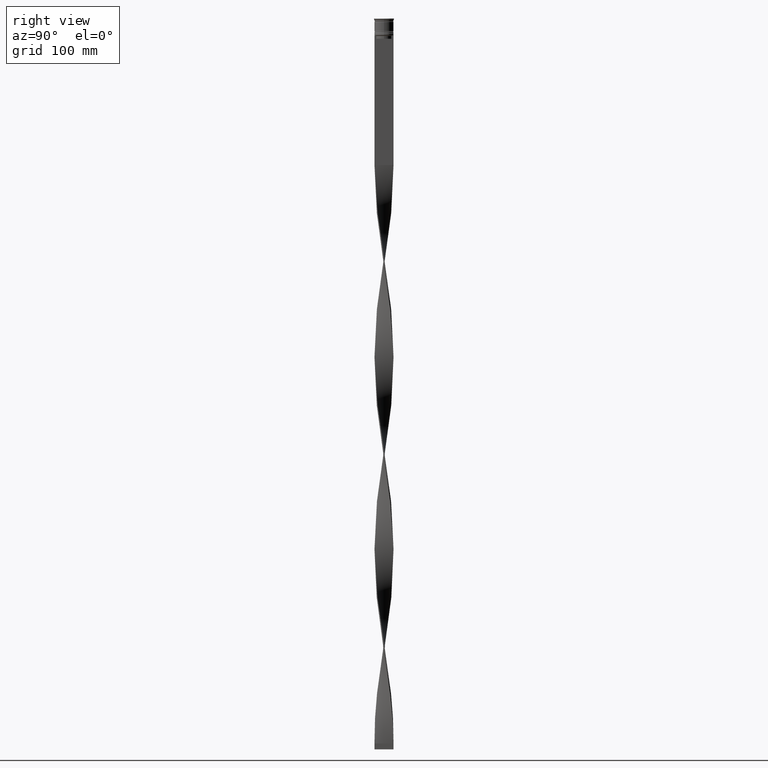
[diagram: clean part render]
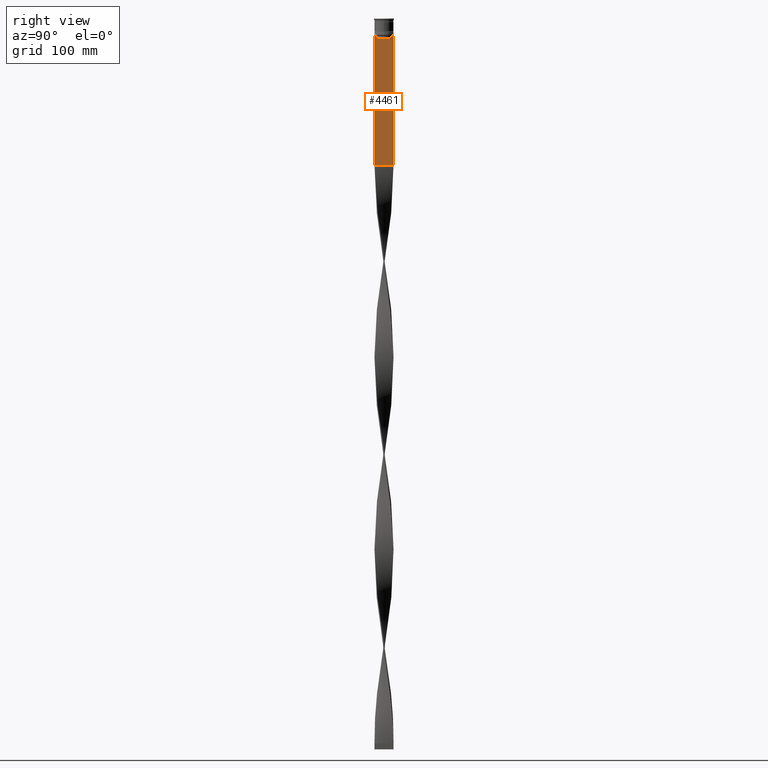
[diagram: same view with one face highlighted and labeled with its STEP entity id]
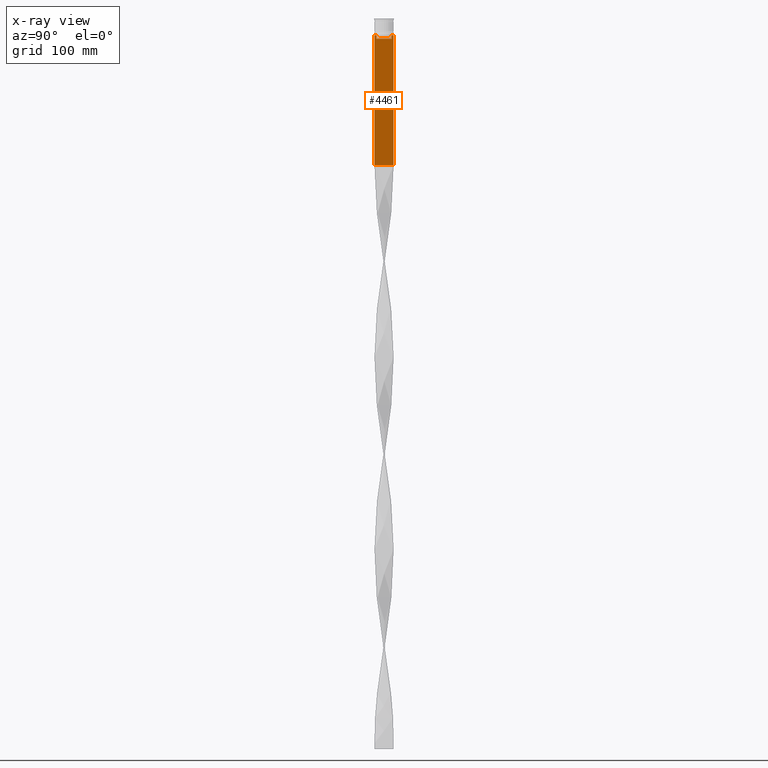
[diagram: x-ray of the same camera — body ghosted, the highlighted face saturated]
A machine part, right view. The second image highlights one B-rep face of the part: STEP entity #4461.
The next image is the same camera in x-ray: the body ghosted, the highlighted face saturated — about 0% of this face is hidden behind the body in this view.
In plain terms, the highlighted planar face has unit normal (-1, 0, 0).
Its self-contained STEP definition (entity closure, byte-faithful):
#40 = LINE ( 'NONE', #2739, #1773 ) ;
#50 = LINE ( 'NONE', #351, #2715 ) ;
#69 = VERTEX_POINT ( 'NONE', #898 ) ;
#103 = ORIENTED_EDGE ( 'NONE', *, *, #3119, .T. ) ;
#106 = CARTESIAN_POINT ( 'NONE',  ( 0.5000000000000001110, -8.000000000000003553, 2.031219541881394530 ) ) ;
#167 = CARTESIAN_POINT ( 'NONE',  ( 0.5000000000000001110, -8.000000000000003553, -123.0000000000000000 ) ) ;
#190 = EDGE_CURVE ( 'NONE', #3093, #2516, #3609, .T. ) ;
#351 = CARTESIAN_POINT ( 'NONE',  ( 0.5000000000000001110, -6.380438856379708312, 0.000000000000000000 ) ) ;
#385 = EDGE_CURVE ( 'NONE', #3523, #619, #1347, .T. ) ;
#390 = DIRECTION ( 'NONE',  ( 0.000000000000000000, 0.000000000000000000, 1.000000000000000000 ) ) ;
#472 = CARTESIAN_POINT ( 'NONE',  ( 0.5000000000000001110, -8.000000000000003553, -14.00000000000000178 ) ) ;
#512 = ORIENTED_EDGE ( 'NONE', *, *, #932, .T. ) ;
#516 = LINE ( 'NONE', #106, #3511 ) ;
#619 = VERTEX_POINT ( 'NONE', #2339 ) ;
#695 = DIRECTION ( 'NONE',  ( 0.000000000000000000, -1.000000000000000000, 0.000000000000000000 ) ) ;
#717 = FACE_OUTER_BOUND ( 'NONE', #1122, .T. ) ;
#757 = EDGE_CURVE ( 'NONE', #4075, #3552, #3878, .T. ) ;
#895 = DIRECTION ( 'NONE',  ( 0.000000000000000000, 0.000000000000000000, -1.000000000000000000 ) ) ;
#898 = CARTESIAN_POINT ( 'NONE',  ( 0.5000000000000001110, 6.881860213634098500, -14.00000000000000178 ) ) ;
#932 = EDGE_CURVE ( 'NONE', #3552, #69, #3577, .T. ) ;
#985 = EDGE_CURVE ( 'NONE', #2511, #3250, #3994, .T. ) ;
#1029 = CARTESIAN_POINT ( 'NONE',  ( 0.5000000000000001110, 6.399999999999999467, -17.00000000000000000 ) ) ;
#1083 = DIRECTION ( 'NONE',  ( 0.000000000000000000, 0.000000000000000000, -1.000000000000000000 ) ) ;
#1106 = CARTESIAN_POINT ( 'NONE',  ( 0.5000000000000001110, 6.380438856379708312, -14.50000000000000000 ) ) ;
#1122 = EDGE_LOOP ( 'NONE', ( #512, #3207, #103, #2948, #4448, #2949, #2257, #2461, #1288, #2670, #2163, #1159 ) ) ;
#1159 = ORIENTED_EDGE ( 'NONE', *, *, #757, .T. ) ;
#1288 = ORIENTED_EDGE ( 'NONE', *, *, #1703, .T. ) ;
#1307 = CARTESIAN_POINT ( 'NONE',  ( 0.5000000000000001110, 6.547597841304911626, -14.33335192459222718 ) ) ;
#1344 = AXIS2_PLACEMENT_3D ( 'NONE', #1393, #2771, #390 ) ;
#1347 = B_SPLINE_CURVE_WITH_KNOTS ( 'NONE', 3,
 ( #3893, #3593, #4274, #3851 ),
 .UNSPECIFIED., .F., .F.,
 ( 4, 4 ),
 ( 0.02996184199614751464, 0.03067452609193705923 ),
 .UNSPECIFIED. ) ;
#1393 = CARTESIAN_POINT ( 'NONE',  ( 0.5000000000000001110, -8.000000000000003553, 2.031219541881394530 ) ) ;
#1429 = DIRECTION ( 'NONE',  ( 0.000000000000000000, -1.000000000000000000, 0.000000000000000000 ) ) ;
#1459 = VERTEX_POINT ( 'NONE', #1106 ) ;
#1660 = VECTOR ( 'NONE', #4377, 1000.000000000000000 ) ;
#1665 = VECTOR ( 'NONE', #1429, 1000.000000000000000 ) ;
#1703 = EDGE_CURVE ( 'NONE', #3250, #3093, #516, .T. ) ;
#1773 = VECTOR ( 'NONE', #3121, 1000.000000000000000 ) ;
#1847 = CARTESIAN_POINT ( 'NONE',  ( 0.5000000000000001110, 7.884161337770806632, -14.00000000000000178 ) ) ;
#1905 = CARTESIAN_POINT ( 'NONE',  ( 0.5000000000000001110, -8.000000000000003553, -14.00000000000000178 ) ) ;
#1978 = EDGE_CURVE ( 'NONE', #4075, #2516, #2218, .T. ) ;
#2026 = CARTESIAN_POINT ( 'NONE',  ( 0.5000000000000001110, 6.380438856379708312, -17.00000000000000000 ) ) ;
#2037 = CARTESIAN_POINT ( 'NONE',  ( 0.5000000000000001110, -8.000000000000003553, -14.00000000000000178 ) ) ;
#2055 = VECTOR ( 'NONE', #1083, 1000.000000000000000 ) ;
#2142 = CARTESIAN_POINT ( 'NONE',  ( 0.5000000000000001110, -6.380438856379708312, -17.00000000000000000 ) ) ;
#2143 = EDGE_CURVE ( 'NONE', #619, #2511, #40, .T. ) ;
#2156 = VECTOR ( 'NONE', #2945, 1000.000000000000000 ) ;
#2163 = ORIENTED_EDGE ( 'NONE', *, *, #1978, .F. ) ;
#2218 = LINE ( 'NONE', #4001, #2355 ) ;
#2257 = ORIENTED_EDGE ( 'NONE', *, *, #2143, .T. ) ;
#2267 = DIRECTION ( 'NONE',  ( 0.000000000000000000, -1.000000000000000000, 0.000000000000000000 ) ) ;
#2301 = B_SPLINE_CURVE_WITH_KNOTS ( 'NONE', 3,
 ( #3067, #4446, #1307, #2690 ),
 .UNSPECIFIED., .F., .F.,
 ( 4, 4 ),
 ( 0.01172465562756038263, 0.01243276816391822651 ),
 .UNSPECIFIED. ) ;
#2310 = VECTOR ( 'NONE', #2267, 1000.000000000000000 ) ;
#2339 = CARTESIAN_POINT ( 'NONE',  ( 0.5000000000000001110, -6.881860213634098500, -14.00000000000000178 ) ) ;
#2355 = VECTOR ( 'NONE', #895, 1000.000000000000000 ) ;
#2436 = DIRECTION ( 'NONE',  ( -0.000000000000000000, -0.000000000000000000, 1.000000000000000000 ) ) ;
#2461 = ORIENTED_EDGE ( 'NONE', *, *, #985, .T. ) ;
#2511 = VERTEX_POINT ( 'NONE', #3934 ) ;
#2516 = VERTEX_POINT ( 'NONE', #2909 ) ;
#2526 = CARTESIAN_POINT ( 'NONE',  ( 0.5000000000000001110, -6.380438856379708312, -14.50000000000000000 ) ) ;
#2670 = ORIENTED_EDGE ( 'NONE', *, *, #190, .T. ) ;
#2690 = CARTESIAN_POINT ( 'NONE',  ( 0.5000000000000001110, 6.380438856379708312, -14.50000000000000000 ) ) ;
#2715 = VECTOR ( 'NONE', #2436, 1000.000000000000000 ) ;
#2739 = CARTESIAN_POINT ( 'NONE',  ( 0.5000000000000001110, -8.000000000000003553, -14.00000000000000178 ) ) ;
#2771 = DIRECTION ( 'NONE',  ( -1.000000000000000000, 0.000000000000000000, 0.000000000000000000 ) ) ;
#2909 = CARTESIAN_POINT ( 'NONE',  ( 0.5000000000000001110, 7.999999999999996447, -123.0000000000000000 ) ) ;
#2913 = EDGE_CURVE ( 'NONE', #69, #1459, #2301, .T. ) ;
#2945 = DIRECTION ( 'NONE',  ( 0.000000000000000000, -1.000000000000000000, 0.000000000000000000 ) ) ;
#2948 = ORIENTED_EDGE ( 'NONE', *, *, #2975, .T. ) ;
#2949 = ORIENTED_EDGE ( 'NONE', *, *, #385, .T. ) ;
#2975 = EDGE_CURVE ( 'NONE', #4047, #3417, #4138, .T. ) ;
#3067 = CARTESIAN_POINT ( 'NONE',  ( 0.5000000000000001110, 6.881860213634098500, -14.00000000000000178 ) ) ;
#3093 = VERTEX_POINT ( 'NONE', #3829 ) ;
#3113 = PLANE ( 'NONE',  #1344 ) ;
#3119 = EDGE_CURVE ( 'NONE', #1459, #4047, #3505, .T. ) ;
#3121 = DIRECTION ( 'NONE',  ( 0.000000000000000000, -1.000000000000000000, 0.000000000000000000 ) ) ;
#3207 = ORIENTED_EDGE ( 'NONE', *, *, #2913, .T. ) ;
#3250 = VERTEX_POINT ( 'NONE', #2037 ) ;
#3417 = VERTEX_POINT ( 'NONE', #2142 ) ;
#3505 = LINE ( 'NONE', #4428, #2055 ) ;
#3511 = VECTOR ( 'NONE', #3594, 1000.000000000000000 ) ;
#3523 = VERTEX_POINT ( 'NONE', #2526 ) ;
#3533 = CARTESIAN_POINT ( 'NONE',  ( 0.5000000000000001110, -8.000000000000003553, -14.00000000000000178 ) ) ;
#3552 = VERTEX_POINT ( 'NONE', #1847 ) ;
#3577 = LINE ( 'NONE', #1905, #2310 ) ;
#3593 = CARTESIAN_POINT ( 'NONE',  ( 0.5000000000000001110, -6.547597841511247019, -14.33335192438652150 ) ) ;
#3594 = DIRECTION ( 'NONE',  ( 0.000000000000000000, 0.000000000000000000, -1.000000000000000000 ) ) ;
#3609 = LINE ( 'NONE', #167, #1660 ) ;
#3646 = VECTOR ( 'NONE', #695, 1000.000000000000000 ) ;
#3829 = CARTESIAN_POINT ( 'NONE',  ( 0.5000000000000001110, -8.000000000000003553, -123.0000000000000000 ) ) ;
#3851 = CARTESIAN_POINT ( 'NONE',  ( 0.5000000000000001110, -6.881860213634098500, -14.00000000000000178 ) ) ;
#3878 = LINE ( 'NONE', #3533, #1665 ) ;
#3893 = CARTESIAN_POINT ( 'NONE',  ( 0.5000000000000001110, -6.380438856379708312, -14.50000000000000000 ) ) ;
#3934 = CARTESIAN_POINT ( 'NONE',  ( 0.5000000000000001110, -7.884161337770806632, -14.00000000000000178 ) ) ;
#3994 = LINE ( 'NONE', #472, #2156 ) ;
#4001 = CARTESIAN_POINT ( 'NONE',  ( 0.5000000000000001110, 7.999999999999996447, 2.031219541881394530 ) ) ;
#4047 = VERTEX_POINT ( 'NONE', #2026 ) ;
#4075 = VERTEX_POINT ( 'NONE', #4087 ) ;
#4087 = CARTESIAN_POINT ( 'NONE',  ( 0.5000000000000001110, 7.999999999999996447, -14.00000000000000178 ) ) ;
#4138 = LINE ( 'NONE', #1029, #3646 ) ;
#4274 = CARTESIAN_POINT ( 'NONE',  ( 0.5000000000000001110, -6.714736947305993908, -14.16668390685738821 ) ) ;
#4330 = EDGE_CURVE ( 'NONE', #3417, #3523, #50, .T. ) ;
#4377 = DIRECTION ( 'NONE',  ( 0.000000000000000000, 1.000000000000000000, 0.000000000000000000 ) ) ;
#4428 = CARTESIAN_POINT ( 'NONE',  ( 0.5000000000000001110, 6.380438856379708312, 0.000000000000000000 ) ) ;
#4446 = CARTESIAN_POINT ( 'NONE',  ( 0.5000000000000001110, 6.714736947114692711, -14.16668390704818847 ) ) ;
#4448 = ORIENTED_EDGE ( 'NONE', *, *, #4330, .T. ) ;
#4461 = ADVANCED_FACE ( 'NONE', ( #717 ), #3113, .F. ) ;